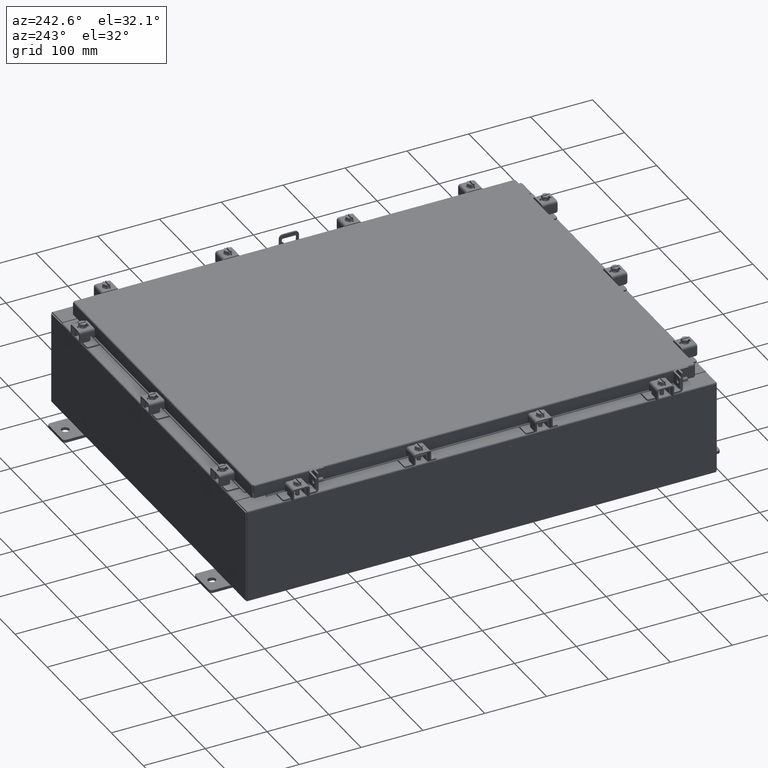
[diagram: clean part render]
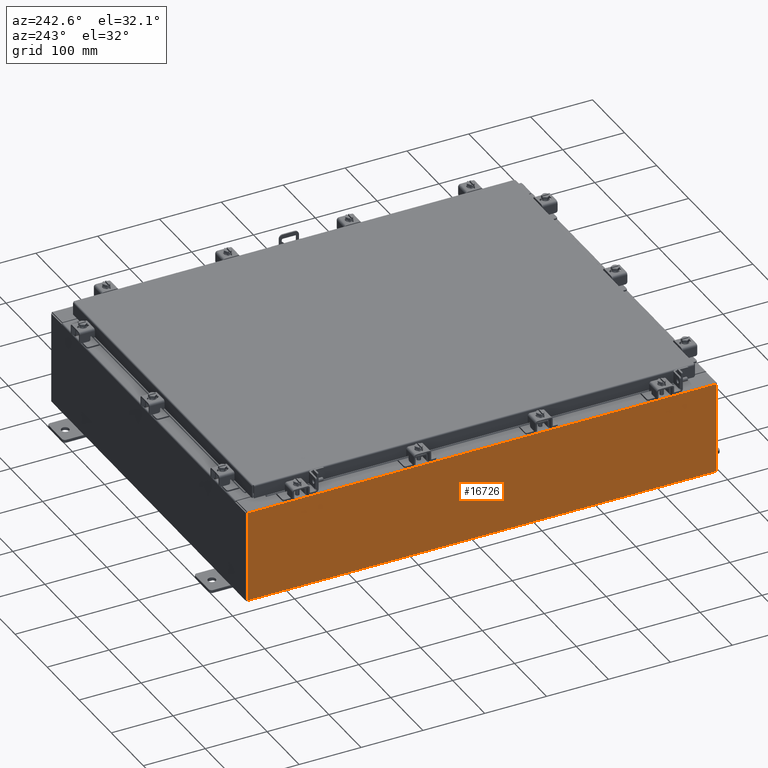
[diagram: same view with one face highlighted and labeled with its STEP entity id]
A machine part, auxiliary view. The second image highlights one B-rep face of the part: STEP entity #16726.
In plain terms, the highlighted planar face has unit normal (1, 0, 0).
Its self-contained STEP definition (entity closure, byte-faithful):
#424 = EDGE_LOOP ( 'NONE', ( #6945, #9122, #13713, #16626 ) ) ;
#459 = VERTEX_POINT ( 'NONE', #13257 ) ;
#1182 = CARTESIAN_POINT ( 'NONE',  ( -12.00000000000000500, 0.0000000000000000000, -4.009536492811466100E-014 ) ) ;
#2853 = CARTESIAN_POINT ( 'NONE',  ( -12.00000000000002500, -14.92530000000000000, 5.837599999999999200 ) ) ;
#3306 = VERTEX_POINT ( 'NONE', #2853 ) ;
#3506 = VECTOR ( 'NONE', #5120, 39.37007874015748100 ) ;
#5064 = CARTESIAN_POINT ( 'NONE',  ( -12.00000000000000500, 14.92530000000000000, 0.01299999999999986400 ) ) ;
#5120 = DIRECTION ( 'NONE',  ( -3.319545939341922800E-015, 0.0000000000000000000, 1.000000000000000000 ) ) ;
#5889 = CARTESIAN_POINT ( 'NONE',  ( -12.00000000000000500, 14.92530000000000000, 0.01299999999999985900 ) ) ;
#6568 = DIRECTION ( 'NONE',  ( 1.000000000000000000, 0.0000000000000000000, 3.319545939341922800E-015 ) ) ;
#6945 = ORIENTED_EDGE ( 'NONE', *, *, #15654, .T. ) ;
#8307 = FACE_OUTER_BOUND ( 'NONE', #424, .T. ) ;
#9122 = ORIENTED_EDGE ( 'NONE', *, *, #19897, .T. ) ;
#9230 = VECTOR ( 'NONE', #19341, 39.37007874015748100 ) ;
#13257 = CARTESIAN_POINT ( 'NONE',  ( -12.00000000000000500, -14.92530000000000000, 0.01299999999999986400 ) ) ;
#13330 = EDGE_CURVE ( 'NONE', #459, #19181, #22944, .T. ) ;
#13713 = ORIENTED_EDGE ( 'NONE', *, *, #13330, .F. ) ;
#14284 = DIRECTION ( 'NONE',  ( 0.0000000000000000000, 1.000000000000000000, 0.0000000000000000000 ) ) ;
#15654 = EDGE_CURVE ( 'NONE', #3306, #20859, #17273, .T. ) ;
#16558 = DIRECTION ( 'NONE',  ( 3.319545939341922800E-015, 0.0000000000000000000, -1.000000000000000000 ) ) ;
#16626 = ORIENTED_EDGE ( 'NONE', *, *, #21055, .T. ) ;
#16726 = ADVANCED_FACE ( 'NONE', ( #8307 ), #17249, .F. ) ;
#17229 = CARTESIAN_POINT ( 'NONE',  ( -12.00000000000002500, 14.92530000000000000, 5.837599999999999200 ) ) ;
#17249 = PLANE ( 'NONE',  #21099 ) ;
#17273 = LINE ( 'NONE', #19692, #22060 ) ;
#18317 = LINE ( 'NONE', #21286, #3506 ) ;
#19042 = DIRECTION ( 'NONE',  ( 3.319545939341922800E-015, 0.0000000000000000000, -1.000000000000000000 ) ) ;
#19181 = VERTEX_POINT ( 'NONE', #5889 ) ;
#19341 = DIRECTION ( 'NONE',  ( -0.0000000000000000000, 1.000000000000000000, -0.0000000000000000000 ) ) ;
#19692 = CARTESIAN_POINT ( 'NONE',  ( -12.00000000000002500, -14.92530000000000000, 5.837599999999999200 ) ) ;
#19897 = EDGE_CURVE ( 'NONE', #20859, #19181, #21904, .T. ) ;
#20859 = VERTEX_POINT ( 'NONE', #17229 ) ;
#21055 = EDGE_CURVE ( 'NONE', #459, #3306, #18317, .T. ) ;
#21099 = AXIS2_PLACEMENT_3D ( 'NONE', #1182, #6568, #19042 ) ;
#21286 = CARTESIAN_POINT ( 'NONE',  ( -12.00000000000000500, -14.92530000000000000, -4.009536492811466100E-014 ) ) ;
#21902 = CARTESIAN_POINT ( 'NONE',  ( -12.00000000000000500, 14.92530000000000000, -4.009536492811466100E-014 ) ) ;
#21904 = LINE ( 'NONE', #21902, #22458 ) ;
#22060 = VECTOR ( 'NONE', #14284, 39.37007874015748100 ) ;
#22458 = VECTOR ( 'NONE', #16558, 39.37007874015748100 ) ;
#22944 = LINE ( 'NONE', #5064, #9230 ) ;